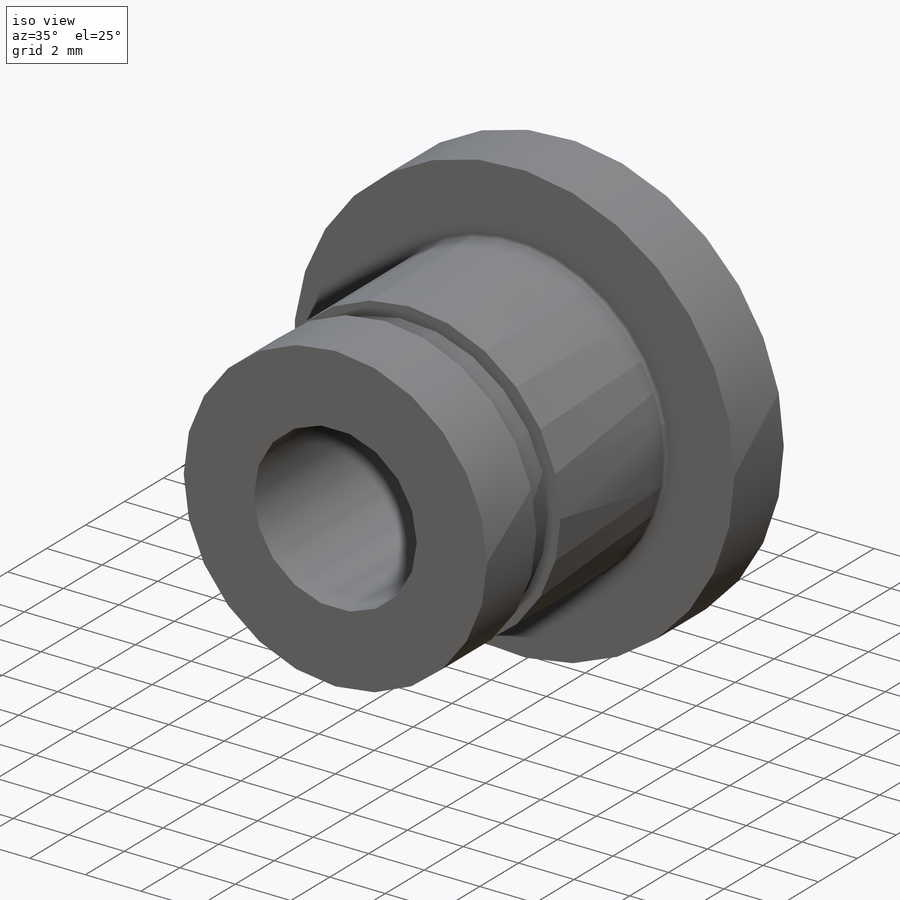
[diagram: iso view]
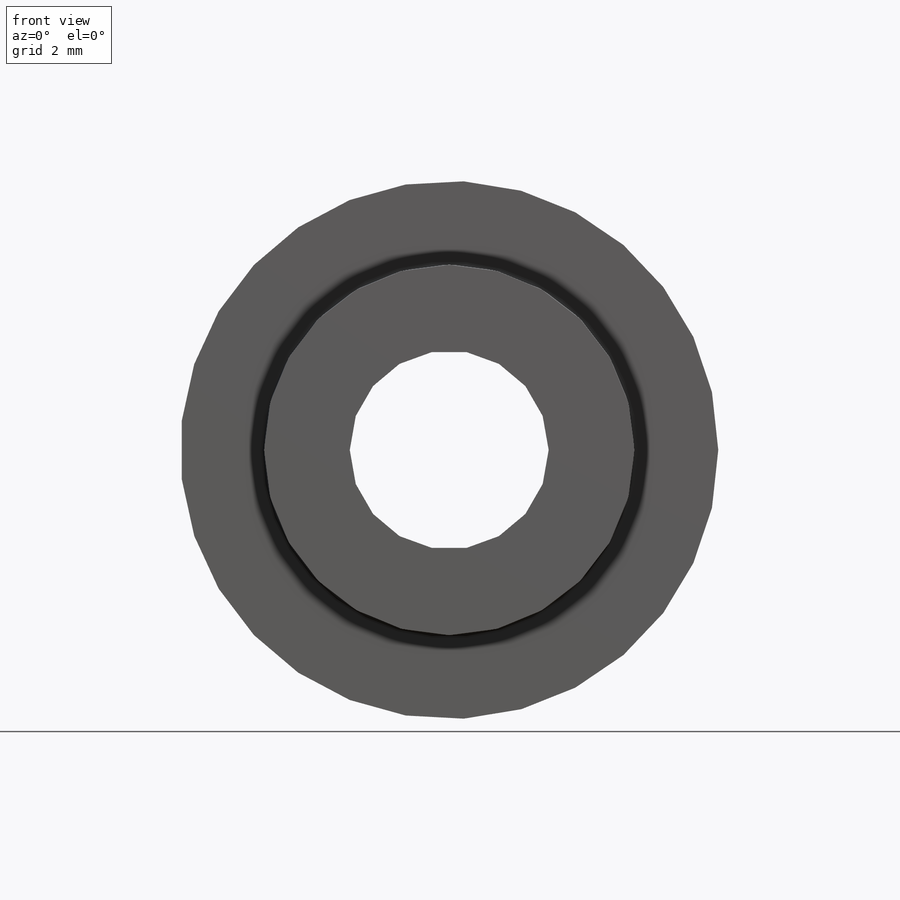
[diagram: front view]
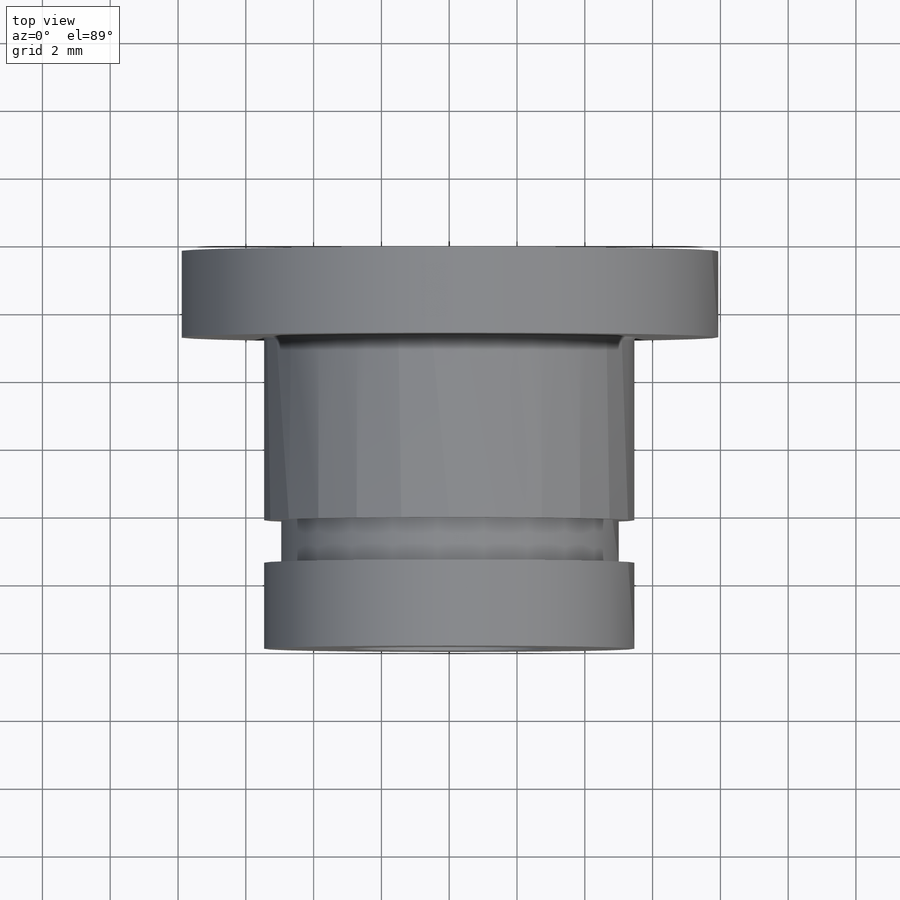
[diagram: top view]
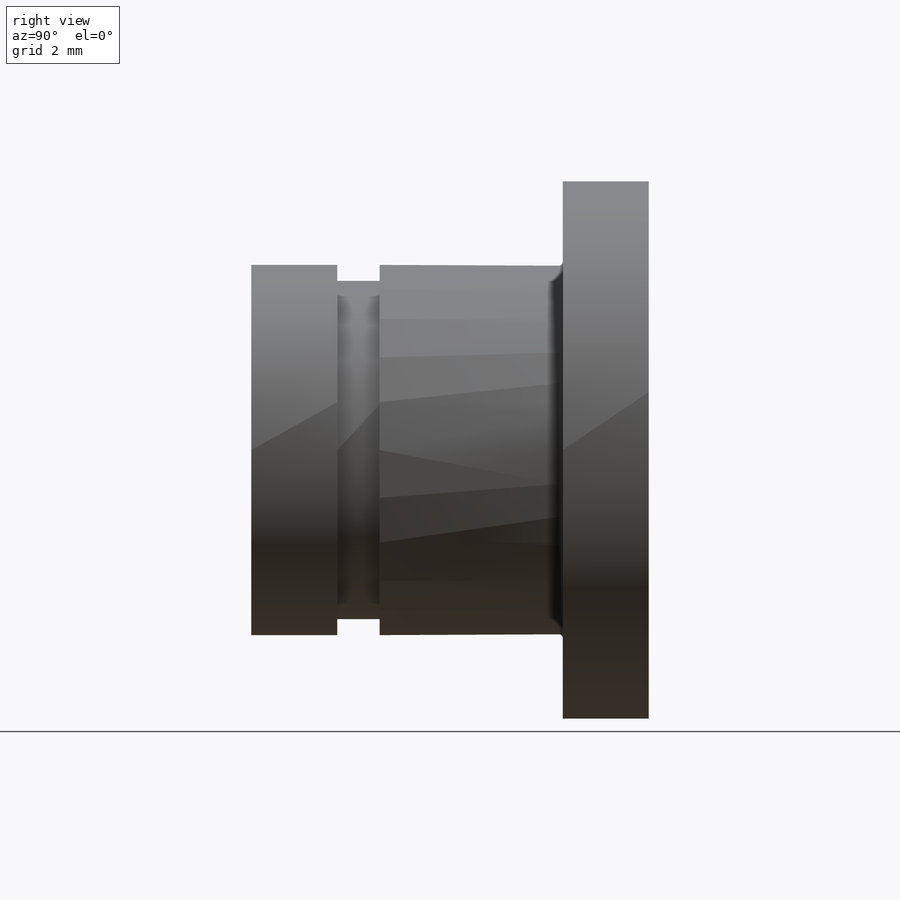
[diagram: right view]
SOLIDWORKS PART (.sldprt)
format: sldprt  version: not decoded by parser v0  size: 242,688 bytes
history: native  units: mm
features: sketch x3, cut_extrude x2, material x1, revolve x1 (+11 scaffold rows collapsed)
feature tree (18):
  scaffold x11  (default folders/planes/origin — collapsed)
  material  "AISI 4340 Steel, normalized"
  sketch  "Sketch1"  dims[D9=0.1mm D1=5.4mm D2=2.54mm D3=7.9375mm D4=2.9337mm D5=5.461mm D6=2.54mm D7=5.0mm D8=1.25mm]
  revolve  "Revolve1"  Angle=360deg
  sketch  "Sketch2"  dims[D1=9.4mm]
  cut_extrude  "Extrude1"  [1 undecoded]
  sketch  "Sketch3"  dims[D1=~0.429561mm]
  cut_extrude  "Extrude2"  Depth=0.1mm
decode coverage: 5 of 6 modeling features carry decoded parameters
note: ~ marks probable driven/reference dimensions
note: 1 parameter value undecoded
note: suppression state not decoded; provenance and decode notes live in map.json
